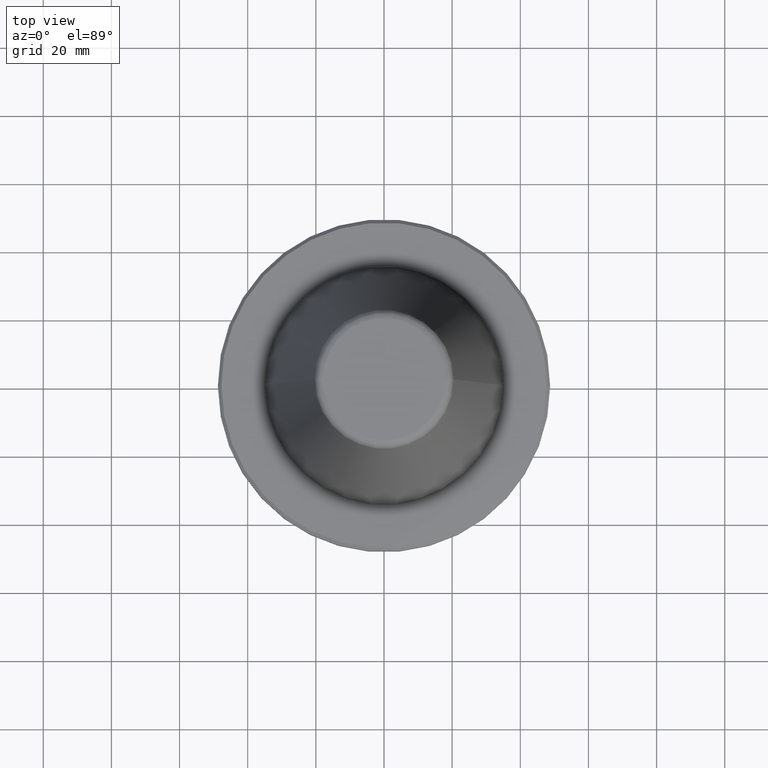
[diagram: clean part render]
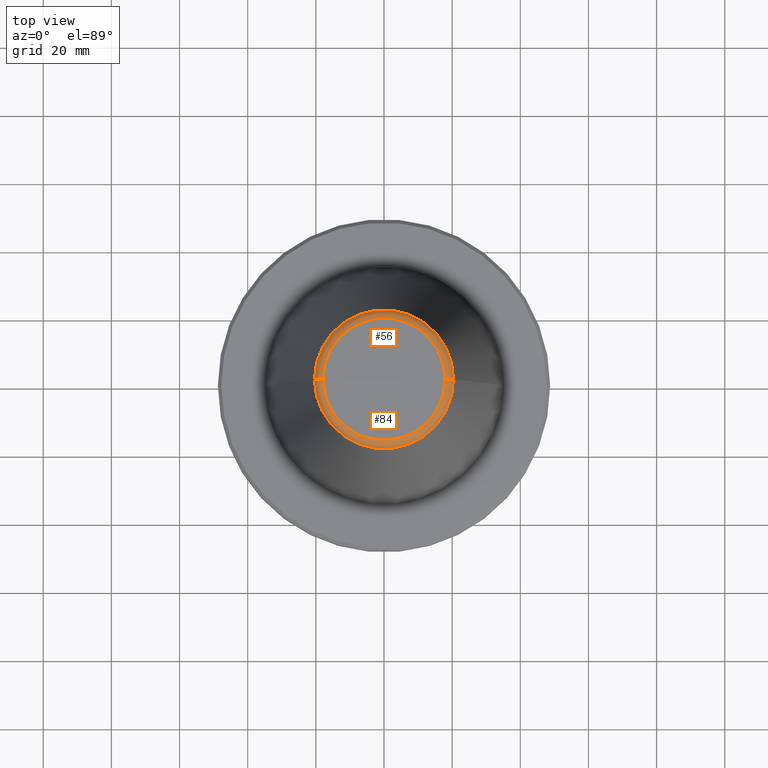
[diagram: same view with one multi-face feature highlighted, each face labeled with its STEP entity id]
A machine part, top view. The highlighted faces form ONE feature: a constant-radius fillet chain: 2 tangent blend faces with common blend radius 2.5 mm. The faces share edges in the B-rep.
Their STEP definitions:
[1] entity #84 (Torus):
#15 = DIRECTION ( 'NONE',  ( -0.0000000000000000000, -0.0000000000000000000, 1.000000000000000000 ) ) ;
#20 = DIRECTION ( 'NONE',  ( 1.000000000000000000, 0.0000000000000000000, 0.0000000000000000000 ) ) ;
#24 = DIRECTION ( 'NONE',  ( -0.0000000000000000000, -0.0000000000000000000, 1.000000000000000000 ) ) ;
#33 = ORIENTED_EDGE ( 'NONE', *, *, #189, .T. ) ;
#70 = AXIS2_PLACEMENT_3D ( 'NONE', #572, #255, #20 ) ;
#82 = CARTESIAN_POINT ( 'NONE',  ( 0.0000000000000000000, 0.0000000000000000000, 101.7500000000000900 ) ) ;
#84 = ADVANCED_FACE ( 'NONE', ( #91 ), #858, .T. ) ;
#91 = FACE_OUTER_BOUND ( 'NONE', #358, .T. ) ;
#114 = CARTESIAN_POINT ( 'NONE',  ( 0.0000000000000000000, 0.0000000000000000000, 99.25000000000000000 ) ) ;
#135 = DIRECTION ( 'NONE',  ( 1.224646799147353200E-016, 1.000000000000000000, 0.0000000000000000000 ) ) ;
#137 = CIRCLE ( 'NONE', #762, 2.500000000000082200 ) ;
#165 = VERTEX_POINT ( 'NONE', #963 ) ;
#176 = ORIENTED_EDGE ( 'NONE', *, *, #697, .T. ) ;
#189 = EDGE_CURVE ( 'NONE', #199, #673, #403, .T. ) ;
#199 = VERTEX_POINT ( 'NONE', #259 ) ;
#212 = CARTESIAN_POINT ( 'NONE',  ( -17.92446055806129500, 2.195113324887274600E-015, 99.25000000000000000 ) ) ;
#241 = ORIENTED_EDGE ( 'NONE', *, *, #707, .F. ) ;
#255 = DIRECTION ( 'NONE',  ( -0.0000000000000000000, -0.0000000000000000000, 1.000000000000000000 ) ) ;
#259 = CARTESIAN_POINT ( 'NONE',  ( -20.39829252569114000, 0.0000000000000000000, 99.61077055857353500 ) ) ;
#264 = CIRCLE ( 'NONE', #431, 17.92446055806129500 ) ;
#358 = EDGE_LOOP ( 'NONE', ( #413, #33, #176, #241 ) ) ;
#403 = CIRCLE ( 'NONE', #70, 20.39829252569114000 ) ;
#413 = ORIENTED_EDGE ( 'NONE', *, *, #625, .F. ) ;
#431 = AXIS2_PLACEMENT_3D ( 'NONE', #82, #15, #777 ) ;
#467 = DIRECTION ( 'NONE',  ( 0.0000000000000000000, -1.000000000000000000, 0.0000000000000000000 ) ) ;
#496 = AXIS2_PLACEMENT_3D ( 'NONE', #114, #24, #700 ) ;
#512 = VERTEX_POINT ( 'NONE', #519 ) ;
#519 = CARTESIAN_POINT ( 'NONE',  ( -17.92446055806129500, 2.346591844926584100E-015, 101.7500000000000900 ) ) ;
#572 = CARTESIAN_POINT ( 'NONE',  ( 0.0000000000000000000, 0.0000000000000000000, 99.61077055857353500 ) ) ;
#598 = CARTESIAN_POINT ( 'NONE',  ( 20.39829252569114000, 3.387574655494023600E-015, 99.61077055857353500 ) ) ;
#625 = EDGE_CURVE ( 'NONE', #199, #512, #137, .T. ) ;
#673 = VERTEX_POINT ( 'NONE', #598 ) ;
#686 = DIRECTION ( 'NONE',  ( -1.000000000000000000, 1.224646799147353500E-016, 0.0000000000000000000 ) ) ;
#697 = EDGE_CURVE ( 'NONE', #673, #165, #721, .T. ) ;
#700 = DIRECTION ( 'NONE',  ( 1.000000000000000000, 0.0000000000000000000, 0.0000000000000000000 ) ) ;
#707 = EDGE_CURVE ( 'NONE', #512, #165, #264, .T. ) ;
#721 = CIRCLE ( 'NONE', #814, 2.500000000000085300 ) ;
#762 = AXIS2_PLACEMENT_3D ( 'NONE', #212, #135, #686 ) ;
#777 = DIRECTION ( 'NONE',  ( 1.000000000000000000, 0.0000000000000000000, 0.0000000000000000000 ) ) ;
#814 = AXIS2_PLACEMENT_3D ( 'NONE', #997, #467, #924 ) ;
#858 = TOROIDAL_SURFACE ( 'NONE', #496, 17.92446055806129500, 2.500000000000083000 ) ;
#924 = DIRECTION ( 'NONE',  ( 0.0000000000000000000, 0.0000000000000000000, -1.000000000000000000 ) ) ;
#963 = CARTESIAN_POINT ( 'NONE',  ( 17.92446055806129500, 0.0000000000000000000, 101.7500000000000900 ) ) ;
#997 = CARTESIAN_POINT ( 'NONE',  ( 17.92446055806129500, 0.0000000000000000000, 99.25000000000000000 ) ) ;
[2] entity #56 (Torus):
#56 = ADVANCED_FACE ( 'NONE', ( #280 ), #504, .T. ) ;
#112 = CARTESIAN_POINT ( 'NONE',  ( 0.0000000000000000000, 0.0000000000000000000, 99.25000000000000000 ) ) ;
#135 = DIRECTION ( 'NONE',  ( 1.224646799147353200E-016, 1.000000000000000000, 0.0000000000000000000 ) ) ;
#137 = CIRCLE ( 'NONE', #762, 2.500000000000082200 ) ;
#141 = CARTESIAN_POINT ( 'NONE',  ( 0.0000000000000000000, 0.0000000000000000000, 99.61077055857353500 ) ) ;
#148 = AXIS2_PLACEMENT_3D ( 'NONE', #112, #423, #578 ) ;
#155 = DIRECTION ( 'NONE',  ( -0.0000000000000000000, -0.0000000000000000000, 1.000000000000000000 ) ) ;
#165 = VERTEX_POINT ( 'NONE', #963 ) ;
#166 = ORIENTED_EDGE ( 'NONE', *, *, #697, .F. ) ;
#199 = VERTEX_POINT ( 'NONE', #259 ) ;
#209 = EDGE_CURVE ( 'NONE', #673, #199, #788, .T. ) ;
#212 = CARTESIAN_POINT ( 'NONE',  ( -17.92446055806129500, 2.195113324887274600E-015, 99.25000000000000000 ) ) ;
#259 = CARTESIAN_POINT ( 'NONE',  ( -20.39829252569114000, 0.0000000000000000000, 99.61077055857353500 ) ) ;
#269 = CARTESIAN_POINT ( 'NONE',  ( 0.0000000000000000000, 0.0000000000000000000, 101.7500000000000900 ) ) ;
#280 = FACE_OUTER_BOUND ( 'NONE', #994, .T. ) ;
#282 = CIRCLE ( 'NONE', #983, 17.92446055806129500 ) ;
#297 = ORIENTED_EDGE ( 'NONE', *, *, #625, .T. ) ;
#423 = DIRECTION ( 'NONE',  ( -0.0000000000000000000, -0.0000000000000000000, 1.000000000000000000 ) ) ;
#467 = DIRECTION ( 'NONE',  ( 0.0000000000000000000, -1.000000000000000000, 0.0000000000000000000 ) ) ;
#504 = TOROIDAL_SURFACE ( 'NONE', #148, 17.92446055806129500, 2.500000000000083000 ) ;
#512 = VERTEX_POINT ( 'NONE', #519 ) ;
#518 = AXIS2_PLACEMENT_3D ( 'NONE', #141, #155, #740 ) ;
#519 = CARTESIAN_POINT ( 'NONE',  ( -17.92446055806129500, 2.346591844926584100E-015, 101.7500000000000900 ) ) ;
#578 = DIRECTION ( 'NONE',  ( 1.000000000000000000, 0.0000000000000000000, 0.0000000000000000000 ) ) ;
#586 = ORIENTED_EDGE ( 'NONE', *, *, #933, .F. ) ;
#598 = CARTESIAN_POINT ( 'NONE',  ( 20.39829252569114000, 3.387574655494023600E-015, 99.61077055857353500 ) ) ;
#625 = EDGE_CURVE ( 'NONE', #199, #512, #137, .T. ) ;
#673 = VERTEX_POINT ( 'NONE', #598 ) ;
#686 = DIRECTION ( 'NONE',  ( -1.000000000000000000, 1.224646799147353500E-016, 0.0000000000000000000 ) ) ;
#697 = EDGE_CURVE ( 'NONE', #673, #165, #721, .T. ) ;
#721 = CIRCLE ( 'NONE', #814, 2.500000000000085300 ) ;
#729 = ORIENTED_EDGE ( 'NONE', *, *, #209, .T. ) ;
#740 = DIRECTION ( 'NONE',  ( 1.000000000000000000, 0.0000000000000000000, 0.0000000000000000000 ) ) ;
#747 = DIRECTION ( 'NONE',  ( -0.0000000000000000000, -0.0000000000000000000, 1.000000000000000000 ) ) ;
#762 = AXIS2_PLACEMENT_3D ( 'NONE', #212, #135, #686 ) ;
#788 = CIRCLE ( 'NONE', #518, 20.39829252569114000 ) ;
#814 = AXIS2_PLACEMENT_3D ( 'NONE', #997, #467, #924 ) ;
#924 = DIRECTION ( 'NONE',  ( 0.0000000000000000000, 0.0000000000000000000, -1.000000000000000000 ) ) ;
#933 = EDGE_CURVE ( 'NONE', #165, #512, #282, .T. ) ;
#963 = CARTESIAN_POINT ( 'NONE',  ( 17.92446055806129500, 0.0000000000000000000, 101.7500000000000900 ) ) ;
#970 = DIRECTION ( 'NONE',  ( 1.000000000000000000, 0.0000000000000000000, 0.0000000000000000000 ) ) ;
#983 = AXIS2_PLACEMENT_3D ( 'NONE', #269, #747, #970 ) ;
#994 = EDGE_LOOP ( 'NONE', ( #729, #297, #586, #166 ) ) ;
#997 = CARTESIAN_POINT ( 'NONE',  ( 17.92446055806129500, 0.0000000000000000000, 99.25000000000000000 ) ) ;